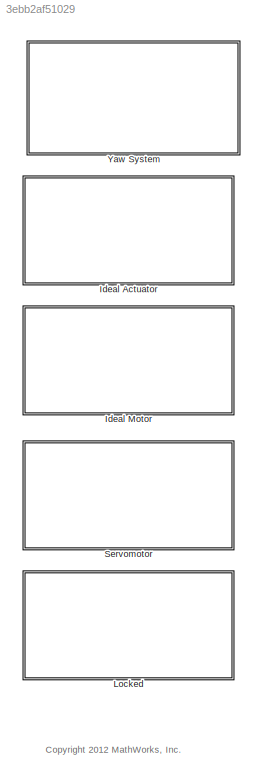
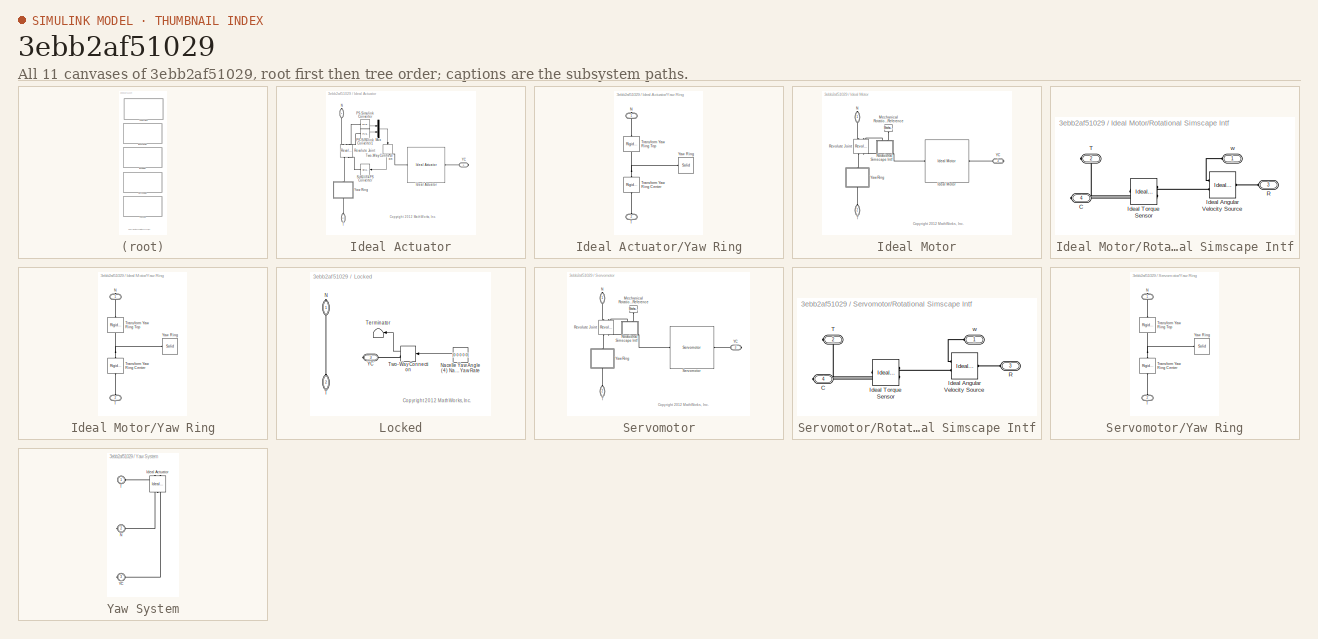
[diagram: thumbnail index - all 11 canvases of the model, root first then tree order]
MODEL slx_3ebb2af51029
KIND library
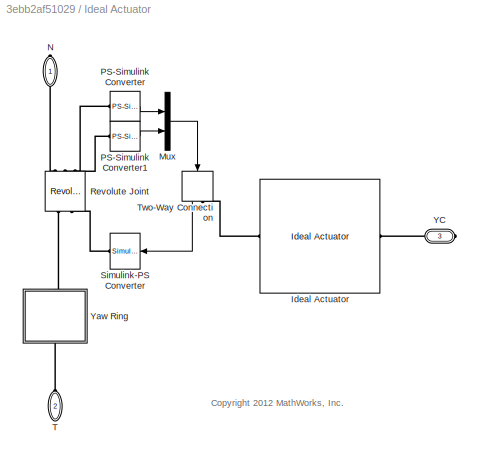
BLOCK [SubSystem] Ideal Actuator
  FunctionWithSeparateData = off
  MaskHideContents = off
  MinAlgLoopOccurrences = off
  Opaque = off
  Ports = [0, 0, 0, 0, 0, 1, 2]
  PropExecContextOutsideSubsystem = off
  RTWSystemCode = Auto
  RequestExecContextInheritance = off
BLOCK [Reference] Ideal Actuator/Ideal Actuator  REF=Yaw_Actuation_Lib/Ideal Actuator
  FunctionWithSeparateData = off
  GeneratePreprocessorConditionals = off
  Ports = [0, 0, 0, 0, 0, 1, 1]
  ShowPortLabels = FromPortIcon
  SourceBlock = Yaw_Actuation_Lib/Ideal Actuator
  SystemSampleTime = -1
BLOCK [Mux] Ideal Actuator/Mux
  DisplayOption = bar
  Inputs = 2
  Ports = [2, 1]
BLOCK [PMIOPort] Ideal Actuator/N
  Port = 1
  Side = Right
BLOCK [Reference] Ideal Actuator/PS-Simulink Converter  REF=nesl_utility/PS-Simulink
Converter
  AffineConversion = off
  Frequencies = []
  LeftPortType = input
  PhysicalDomain = network_engine_domain
  Ports = [0, 1, 0, 0, 0, 1]
  PseudoPeriodic = off
  RightPortType = output
  SourceBlock = nesl_utility/PS-Simulink\nConverter
  SourceType = PS-Simulink\nConverter
  SubClassName = ps_output
  Unit = deg
BLOCK [Reference] Ideal Actuator/PS-Simulink Converter1  REF=nesl_utility/PS-Simulink
Converter
  AffineConversion = off
  Frequencies = []
  LeftPortType = input
  PhysicalDomain = network_engine_domain
  Ports = [0, 1, 0, 0, 0, 1]
  PseudoPeriodic = off
  RightPortType = output
  SourceBlock = nesl_utility/PS-Simulink\nConverter
  SourceType = PS-Simulink\nConverter
  SubClassName = ps_output
  Unit = deg/s
BLOCK [Reference] Ideal Actuator/Revolute Joint  REF=sm_lib/Joints/Revolute Joint
  ActuationMode = TorqueForceActuation
  BlockFunction = simmechanics.library.joints.revolute_joint
  ClassName = RevoluteJoint
  ConstraintWrenchDir = FollowerOnBase
  ConstraintWrenchFrame = BaseFrame
  DampingCoefficient = WT_Params.Nacelle.damping
  DampingCoefficientUnits = N*m/(deg/s)
  EquilibriumPosition = 0
  EquilibriumPositionUnits = deg
  Ports = [0, 0, 0, 0, 0, 2, 3]
  PositionTargetPriority = High
  PositionTargetSpecify = off
  PositionTargetValue = 0
  PositionTargetValueUnits = deg
  SenseAcceleration = off
  SenseConstraintForceX = off
  SenseConstraintForceY = off
  SenseConstraintForceZ = off
  SenseConstraintTorqueX = off
  SenseConstraintTorqueY = off
  SenseConstraintTorqueZ = off
  SensePosition = on
  SenseTorqueForce = off
  SenseVelocity = on
  SourceBlock = sm_lib/Joints/Revolute Joint
  SourceType = Revolute Joint
  SpringStiffness = 0
  SpringStiffnessUnits = N*m/deg
  VelocityTargetPriority = High
  VelocityTargetSpecify = off
  VelocityTargetValue = 0
  VelocityTargetValueUnits = deg/s
BLOCK [Reference] Ideal Actuator/Simulink-PS Converter  REF=nesl_utility/Simulink-PS
Converter
  AffineConversion = off
  Frequencies = []
  InputFilterTimeConstant = .001
  InputFiltering = off
  LeftPortType = input
  NoiseDistribution = none
  NoiseParameters = []
  PhysicalDomain = network_engine_domain
  Ports = [1, 0, 0, 0, 0, 0, 1]
  PseudoPeriodic = off
  RightPortType = output
  SimscapeFilterOrder = 1
  SourceBlock = nesl_utility/Simulink-PS\nConverter
  SourceType = Simulink-PS\nConverter
  SubClassName = ps_input
  UdotUserProvided = []
  Unit = 1
BLOCK [PMIOPort] Ideal Actuator/T
  Port = 2
  Side = Left
BLOCK [TwoWayConnection] Ideal Actuator/Two-Way Connection
  Ports = [1, 1, 0, 0, 0, 0, 1]
BLOCK [PMIOPort] Ideal Actuator/YC
  Port = 3
  Side = Right
BLOCK [SubSystem] Ideal Actuator/Yaw Ring
  FunctionWithSeparateData = off
  MaskHideContents = off
  MinAlgLoopOccurrences = off
  Opaque = off
  Ports = [0, 0, 0, 0, 0, 1, 1]
  PropExecContextOutsideSubsystem = off
  RTWSystemCode = Auto
  RequestExecContextInheritance = off
BLOCK [PMIOPort] Ideal Actuator/Yaw Ring/N
  Port = 1
  Side = Right
BLOCK [PMIOPort] Ideal Actuator/Yaw Ring/T
  Port = 2
  Side = Left
BLOCK [Reference] Ideal Actuator/Yaw Ring/Transform Yaw Ring Center  REF=sm_lib/Frames and
 Transforms/Rigid 
Transform
  BaseAlignAxisA = +Y
  BaseAlignAxisB = +Z
  BlockFunction = simmechanics.library.frames_transforms.rigid_transform
  ClassName = RigidTransform
  FollAlignAxisA = +X
  FollAlignAxisB = +Y
  Ports = [0, 0, 0, 0, 0, 1, 1]
  RotationAngle = 0
  RotationAngleUnits = deg
  RotationArbitraryAxis = [0 0 1]
  RotationMethod = None
  RotationStandardAxis = +Z
  SourceBlock = sm_lib/Frames and\n Transforms/Rigid \nTransform
  SourceType = Rigid Transform
  TranslationCartesianOffset = [0 0 0]
  TranslationLengthUnit = m
  TranslationMethod = StandardAxis
  TranslationROffset = 0
  TranslationROffsetUnits = m
  TranslationStandardAxis = +Z
  TranslationStandardOffset = WT_Params.Yaw_Actuator.yaw_ring_thickness/2
  TranslationThetaOffset = 0
  TranslationThetaOffsetUnits = deg
  TranslationZOffset = 0
  TranslationZOffsetUnits = m
BLOCK [Reference] Ideal Actuator/Yaw Ring/Transform Yaw Ring Top  REF=sm_lib/Frames and
 Transforms/Rigid 
Transform
  BaseAlignAxisA = +Y
  BaseAlignAxisB = +Z
  BlockFunction = simmechanics.library.frames_transforms.rigid_transform
  ClassName = RigidTransform
  FollAlignAxisA = +X
  FollAlignAxisB = +Y
  Ports = [0, 0, 0, 0, 0, 1, 1]
  RotationAngle = 0
  RotationAngleUnits = deg
  RotationArbitraryAxis = [0 0 1]
  RotationMethod = None
  RotationStandardAxis = +Z
  SourceBlock = sm_lib/Frames and\n Transforms/Rigid \nTransform
  SourceType = Rigid Transform
  TranslationCartesianOffset = [0 0 0]
  TranslationLengthUnit = m
  TranslationMethod = StandardAxis
  TranslationROffset = 0
  TranslationROffsetUnits = m
  TranslationStandardAxis = +Z
  TranslationStandardOffset = WT_Params.Yaw_Actuator.yaw_ring_thickness/2
  TranslationThetaOffset = 0
  TranslationThetaOffsetUnits = deg
  TranslationZOffset = 0
  TranslationZOffsetUnits = m
BLOCK [Reference] Ideal Actuator/Yaw Ring/Yaw Ring  REF=sm_lib/Body Elements/Solid
  BlockFunction = simmechanics.library.body_elements.solid
  BrickDimensionUnits = m
  BrickDimensions = [1 1 1]
  CenterOfMass = [0 0 0]
  CenterOfMassUnits = m
  ClassName = Solid
  CylinderLength = WT_Params.Yaw_Actuator.yaw_ring_thickness
  CylinderLengthUnits = m
  CylinderRadius = WT_Params.Yaw_Actuator.yaw_ring_diameter/2
  CylinderRadiusUnits = m
  Density = 1000
  DensityBased = on
  DensityUnits = kg/(m^3)
  EllipsoidRadii = [1 1 1]
  EllipsoidRadiiUnits = m
  ExtGeomFileUnits = m
  ExtrusionCrossSection = [1 1; -1 1; -1 -1; 1 -1]
  ExtrusionCrossSectionUnits = m
  ExtrusionLength = 1
  ExtrusionLengthUnits = m
  GeometryShape = Cylinder
  GraphicAmbientColor = [0.15 0.15 0.15 1.0]
  GraphicDiffuseColor = [1.0 1.0 0.0]
  GraphicEmissiveColor = [0.0 0.0 0.0 1.0]
  GraphicOpacity = 1.0
  GraphicShininess = 75
  GraphicSpecularColor = [0.5 0.5 0.5 1.0]
  GraphicType = FromGeometry
  GraphicVisPropType = SimpleVisualProperties
  InertiaType = CalculateFromGeometry
  MarkerShape = Sphere
  MarkerSize = 10
  MarkerSizeUnits = m
  Mass = 1
  MassUnits = kg
  MomentsOfInertia = [1 1 1]
  MomentsOfInertiaUnits = kg*m^2
  PolygonNumSides = 3
  PolygonOuterRadius = 1
  PolygonOuterRadiusUnits = m
  Ports = [0, 0, 0, 0, 0, 0, 1]
  ProductsOfInertia = [0 0 0]
  ProductsOfInertiaUnits = kg*m^2
  RectangleSize = [1 1]
  RectangleSizeUnits = m
  RevolutionAngle = 180
  RevolutionAngleUnits = deg
  RevolutionCrossSection = [1 1; 1 -1; 2 -1; 2 1]
  RevolutionCrossSectionUnits = m
  RevolutionExtent = Full
  SourceBlock = sm_lib/Body Elements/Solid
  SourceType = Unknown
  SphereRadius = 1
  SphereRadiusUnits = m
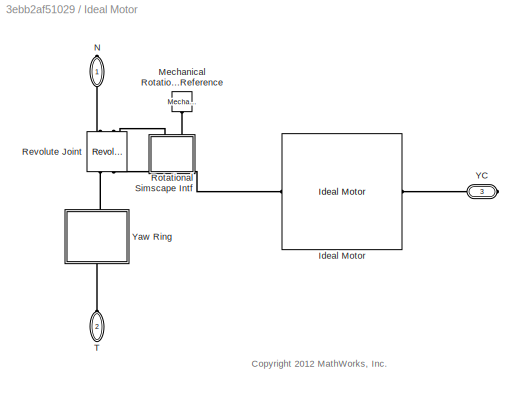
BLOCK [SubSystem] Ideal Motor
  FunctionWithSeparateData = off
  MaskHideContents = off
  MinAlgLoopOccurrences = off
  Opaque = off
  Ports = [0, 0, 0, 0, 0, 1, 2]
  PropExecContextOutsideSubsystem = off
  RTWSystemCode = Auto
  RequestExecContextInheritance = off
BLOCK [Reference] Ideal Motor/Ideal Motor  REF=Yaw_Actuation_Lib/Ideal Motor
  FunctionWithSeparateData = off
  GeneratePreprocessorConditionals = off
  Ports = [0, 0, 0, 0, 0, 1, 1]
  ShowPortLabels = FromPortIcon
  SourceBlock = Yaw_Actuation_Lib/Ideal Motor
  SystemSampleTime = -1
BLOCK [Reference] Ideal Motor/Mechanical Rotational Reference  REF=fl_lib/Mechanical/Rotational Elements/Mechanical
Rotational Reference
  ClassName = reference
  ComponentPath = foundation.mechanical.rotational.reference
  ComponentVariantNames = reference
  ComponentVariants = foundation.mechanical.rotational.reference
  LocalVarDescs = |t
  LocalVarLogging = 0
  LocalVarNames = |t
  Ports = [0, 0, 0, 0, 0, 1]
  SchemaVersion = 1
  SourceBlock = fl_lib/Mechanical/Rotational Elements/Mechanical\nRotational Reference
  SourceFile = foundation.mechanical.rotational.reference
  SourceType = Mechanical\nRotational Reference
  t_Log = off
BLOCK [PMIOPort] Ideal Motor/N
  Port = 1
  Side = Right
BLOCK [Reference] Ideal Motor/Revolute Joint  REF=sm_lib/Joints/Revolute Joint
  ActuationMode = TorqueForceActuation
  BlockFunction = simmechanics.library.joints.revolute_joint
  ClassName = RevoluteJoint
  ConstraintWrenchDir = FollowerOnBase
  ConstraintWrenchFrame = BaseFrame
  DampingCoefficient = WT_Params.Nacelle.damping
  DampingCoefficientUnits = N*m/(deg/s)
  EquilibriumPosition = 0
  EquilibriumPositionUnits = deg
  Ports = [0, 0, 0, 0, 0, 2, 2]
  PositionTargetPriority = High
  PositionTargetSpecify = off
  PositionTargetValue = 0
  PositionTargetValueUnits = deg
  SenseAcceleration = off
  SenseConstraintForceX = off
  SenseConstraintForceY = off
  SenseConstraintForceZ = off
  SenseConstraintTorqueX = off
  SenseConstraintTorqueY = off
  SenseConstraintTorqueZ = off
  SensePosition = off
  SenseTorqueForce = off
  SenseVelocity = on
  SourceBlock = sm_lib/Joints/Revolute Joint
  SourceType = Revolute Joint
  SpringStiffness = 0
  SpringStiffnessUnits = N*m/deg
  VelocityTargetPriority = High
  VelocityTargetSpecify = off
  VelocityTargetValue = 0
  VelocityTargetValueUnits = deg/s
BLOCK [SubSystem] Ideal Motor/Rotational Simscape Intf
  FunctionWithSeparateData = off
  MaskHideContents = off
  MinAlgLoopOccurrences = off
  Opaque = off
  Ports = [0, 0, 0, 0, 0, 2, 2]
  PropExecContextOutsideSubsystem = off
  RTWSystemCode = Auto
  RequestExecContextInheritance = off
BLOCK [PMIOPort] Ideal Motor/Rotational Simscape Intf/C
  Port = 4
  Side = Right
BLOCK [Reference] Ideal Motor/Rotational Simscape Intf/Ideal Angular Velocity Source  REF=fl_lib/Mechanical/Mechanical Sources/Ideal Angular
Velocity Source
  ClassName = angular_velocity
  ComponentPath = foundation.mechanical.sources.angular_velocity
  ComponentVariantNames = angular_velocity
  ComponentVariants = foundation.mechanical.sources.angular_velocity
  LocalVarDescs = |w|t
  LocalVarLogging = [0 0]
  LocalVarNames = |w|t
  Ports = [0, 0, 0, 0, 0, 1, 2]
  SchemaVersion = 1
  SourceBlock = fl_lib/Mechanical/Mechanical Sources/Ideal Angular\nVelocity Source
  SourceFile = foundation.mechanical.sources.angular_velocity
  SourceType = Ideal Angular\nVelocity Source
  t_Log = off
  w_Log = off
BLOCK [Reference] Ideal Motor/Rotational Simscape Intf/Ideal Torque Sensor  REF=fl_lib/Mechanical/Mechanical Sensors/Ideal Torque Sensor
  ClassName = torque
  ComponentPath = foundation.mechanical.sensors.torque
  ComponentVariantNames = torque
  ComponentVariants = foundation.mechanical.sensors.torque
  LocalVarDescs = |w|t
  LocalVarLogging = [0 0]
  LocalVarNames = |w|t
  Ports = [0, 0, 0, 0, 0, 1, 2]
  SchemaVersion = 1
  SourceBlock = fl_lib/Mechanical/Mechanical Sensors/Ideal Torque Sensor
  SourceFile = foundation.mechanical.sensors.torque
  SourceType = Ideal Torque Sensor
  t_Log = off
  w_Log = off
BLOCK [PMIOPort] Ideal Motor/Rotational Simscape Intf/R
  Port = 3
  Side = Left
BLOCK [PMIOPort] Ideal Motor/Rotational Simscape Intf/T
  Port = 2
  Side = Right
BLOCK [PMIOPort] Ideal Motor/Rotational Simscape Intf/w
  Port = 1
  Side = Left
BLOCK [PMIOPort] Ideal Motor/T
  Port = 2
  Side = Left
BLOCK [PMIOPort] Ideal Motor/YC
  Port = 3
  Side = Right
BLOCK [SubSystem] Ideal Motor/Yaw Ring
  FunctionWithSeparateData = off
  MaskHideContents = off
  MinAlgLoopOccurrences = off
  Opaque = off
  Ports = [0, 0, 0, 0, 0, 1, 1]
  PropExecContextOutsideSubsystem = off
  RTWSystemCode = Auto
  RequestExecContextInheritance = off
BLOCK [PMIOPort] Ideal Motor/Yaw Ring/N
  Port = 1
  Side = Right
BLOCK [PMIOPort] Ideal Motor/Yaw Ring/T
  Port = 2
  Side = Left
BLOCK [Reference] Ideal Motor/Yaw Ring/Transform Yaw Ring Center  REF=sm_lib/Frames and
 Transforms/Rigid 
Transform
  BaseAlignAxisA = +Y
  BaseAlignAxisB = +Z
  BlockFunction = simmechanics.library.frames_transforms.rigid_transform
  ClassName = RigidTransform
  FollAlignAxisA = +X
  FollAlignAxisB = +Y
  Ports = [0, 0, 0, 0, 0, 1, 1]
  RotationAngle = 0
  RotationAngleUnits = deg
  RotationArbitraryAxis = [0 0 1]
  RotationMethod = None
  RotationStandardAxis = +Z
  SourceBlock = sm_lib/Frames and\n Transforms/Rigid \nTransform
  SourceType = Rigid Transform
  TranslationCartesianOffset = [0 0 0]
  TranslationLengthUnit = m
  TranslationMethod = StandardAxis
  TranslationROffset = 0
  TranslationROffsetUnits = m
  TranslationStandardAxis = +Z
  TranslationStandardOffset = WT_Params.Yaw_Actuator.yaw_ring_thickness/2
  TranslationThetaOffset = 0
  TranslationThetaOffsetUnits = deg
  TranslationZOffset = 0
  TranslationZOffsetUnits = m
BLOCK [Reference] Ideal Motor/Yaw Ring/Transform Yaw Ring Top  REF=sm_lib/Frames and
 Transforms/Rigid 
Transform
  BaseAlignAxisA = +Y
  BaseAlignAxisB = +Z
  BlockFunction = simmechanics.library.frames_transforms.rigid_transform
  ClassName = RigidTransform
  FollAlignAxisA = +X
  FollAlignAxisB = +Y
  Ports = [0, 0, 0, 0, 0, 1, 1]
  RotationAngle = 0
  RotationAngleUnits = deg
  RotationArbitraryAxis = [0 0 1]
  RotationMethod = None
  RotationStandardAxis = +Z
  SourceBlock = sm_lib/Frames and\n Transforms/Rigid \nTransform
  SourceType = Rigid Transform
  TranslationCartesianOffset = [0 0 0]
  TranslationLengthUnit = m
  TranslationMethod = StandardAxis
  TranslationROffset = 0
  TranslationROffsetUnits = m
  TranslationStandardAxis = +Z
  TranslationStandardOffset = WT_Params.Yaw_Actuator.yaw_ring_thickness/2
  TranslationThetaOffset = 0
  TranslationThetaOffsetUnits = deg
  TranslationZOffset = 0
  TranslationZOffsetUnits = m
BLOCK [Reference] Ideal Motor/Yaw Ring/Yaw Ring  REF=sm_lib/Body Elements/Solid
  BlockFunction = simmechanics.library.body_elements.solid
  BrickDimensionUnits = m
  BrickDimensions = [1 1 1]
  CenterOfMass = [0 0 0]
  CenterOfMassUnits = m
  ClassName = Solid
  CylinderLength = WT_Params.Yaw_Actuator.yaw_ring_thickness
  CylinderLengthUnits = m
  CylinderRadius = WT_Params.Yaw_Actuator.yaw_ring_diameter/2
  CylinderRadiusUnits = m
  Density = 1000
  DensityBased = on
  DensityUnits = kg/(m^3)
  EllipsoidRadii = [1 1 1]
  EllipsoidRadiiUnits = m
  ExtGeomFileUnits = m
  ExtrusionCrossSection = [1 1; -1 1; -1 -1; 1 -1]
  ExtrusionCrossSectionUnits = m
  ExtrusionLength = 1
  ExtrusionLengthUnits = m
  GeometryShape = Cylinder
  GraphicAmbientColor = [0.15 0.15 0.15 1.0]
  GraphicDiffuseColor = [1.0 1.0 0.0]
  GraphicEmissiveColor = [0.0 0.0 0.0 1.0]
  GraphicOpacity = 1.0
  GraphicShininess = 75
  GraphicSpecularColor = [0.5 0.5 0.5 1.0]
  GraphicType = FromGeometry
  GraphicVisPropType = SimpleVisualProperties
  InertiaType = CalculateFromGeometry
  MarkerShape = Sphere
  MarkerSize = 10
  MarkerSizeUnits = m
  Mass = 1
  MassUnits = kg
  MomentsOfInertia = [1 1 1]
  MomentsOfInertiaUnits = kg*m^2
  PolygonNumSides = 3
  PolygonOuterRadius = 1
  PolygonOuterRadiusUnits = m
  Ports = [0, 0, 0, 0, 0, 0, 1]
  ProductsOfInertia = [0 0 0]
  ProductsOfInertiaUnits = kg*m^2
  RectangleSize = [1 1]
  RectangleSizeUnits = m
  RevolutionAngle = 180
  RevolutionAngleUnits = deg
  RevolutionCrossSection = [1 1; 1 -1; 2 -1; 2 1]
  RevolutionCrossSectionUnits = m
  RevolutionExtent = Full
  SourceBlock = sm_lib/Body Elements/Solid
  SourceType = Unknown
  SphereRadius = 1
  SphereRadiusUnits = m
BLOCK [SubSystem] Locked
  FunctionWithSeparateData = off
  MaskHideContents = off
  MinAlgLoopOccurrences = off
  Opaque = off
  Ports = [0, 0, 0, 0, 0, 1, 2]
  PropExecContextOutsideSubsystem = off
  RTWSystemCode = Auto
  RequestExecContextInheritance = off
BLOCK [PMIOPort] Locked/N
  Port = 1
  Side = Right
BLOCK [Constant] Locked/Nacelle Yaw Angle (4) Nacelle Yaw Rate
  Value = [0 0 0 0 0]
BLOCK [PMIOPort] Locked/T
  Port = 2
  Side = Left
BLOCK [Terminator] Locked/Terminator
BLOCK [TwoWayConnection] Locked/Two-Way Connection
  Ports = [1, 1, 0, 0, 0, 0, 1]
BLOCK [PMIOPort] Locked/YC
  Port = 3
  Side = Right
BLOCK [SubSystem] Servomotor
  FunctionWithSeparateData = off
  MaskHideContents = off
  MinAlgLoopOccurrences = off
  Opaque = off
  Ports = [0, 0, 0, 0, 0, 1, 2]
  PropExecContextOutsideSubsystem = off
  RTWSystemCode = Auto
  RequestExecContextInheritance = off
BLOCK [Reference] Servomotor/Mechanical Rotational Reference  REF=fl_lib/Mechanical/Rotational Elements/Mechanical
Rotational Reference
  ClassName = reference
  ComponentPath = foundation.mechanical.rotational.reference
  ComponentVariantNames = reference
  ComponentVariants = foundation.mechanical.rotational.reference
  LocalVarDescs = |t
  LocalVarLogging = 0
  LocalVarNames = |t
  Ports = [0, 0, 0, 0, 0, 1]
  SchemaVersion = 1
  SourceBlock = fl_lib/Mechanical/Rotational Elements/Mechanical\nRotational Reference
  SourceFile = foundation.mechanical.rotational.reference
  SourceType = Mechanical\nRotational Reference
  t_Log = off
BLOCK [PMIOPort] Servomotor/N
  Port = 1
  Side = Right
BLOCK [Reference] Servomotor/Revolute Joint  REF=sm_lib/Joints/Revolute Joint
  ActuationMode = TorqueForceActuation
  BlockFunction = simmechanics.library.joints.revolute_joint
  ClassName = RevoluteJoint
  ConstraintWrenchDir = FollowerOnBase
  ConstraintWrenchFrame = BaseFrame
  DampingCoefficient = WT_Params.Nacelle.damping
  DampingCoefficientUnits = N*m/(deg/s)
  EquilibriumPosition = 0
  EquilibriumPositionUnits = deg
  Ports = [0, 0, 0, 0, 0, 2, 2]
  PositionTargetPriority = High
  PositionTargetSpecify = off
  PositionTargetValue = 0
  PositionTargetValueUnits = deg
  SenseAcceleration = off
  SenseConstraintForceX = off
  SenseConstraintForceY = off
  SenseConstraintForceZ = off
  SenseConstraintTorqueX = off
  SenseConstraintTorqueY = off
  SenseConstraintTorqueZ = off
  SensePosition = off
  SenseTorqueForce = off
  SenseVelocity = on
  SourceBlock = sm_lib/Joints/Revolute Joint
  SourceType = Revolute Joint
  SpringStiffness = 0
  SpringStiffnessUnits = N*m/deg
  VelocityTargetPriority = High
  VelocityTargetSpecify = off
  VelocityTargetValue = 0
  VelocityTargetValueUnits = deg/s
BLOCK [SubSystem] Servomotor/Rotational Simscape Intf
  FunctionWithSeparateData = off
  MaskHideContents = off
  MinAlgLoopOccurrences = off
  Opaque = off
  Ports = [0, 0, 0, 0, 0, 2, 2]
  PropExecContextOutsideSubsystem = off
  RTWSystemCode = Auto
  RequestExecContextInheritance = off
BLOCK [PMIOPort] Servomotor/Rotational Simscape Intf/C
  Port = 4
  Side = Right
BLOCK [Reference] Servomotor/Rotational Simscape Intf/Ideal Angular Velocity Source  REF=fl_lib/Mechanical/Mechanical Sources/Ideal Angular
Velocity Source
  ClassName = angular_velocity
  ComponentPath = foundation.mechanical.sources.angular_velocity
  ComponentVariantNames = angular_velocity
  ComponentVariants = foundation.mechanical.sources.angular_velocity
  LocalVarDescs = |w|t
  LocalVarLogging = [0 0]
  LocalVarNames = |w|t
  Ports = [0, 0, 0, 0, 0, 1, 2]
  SchemaVersion = 1
  SourceBlock = fl_lib/Mechanical/Mechanical Sources/Ideal Angular\nVelocity Source
  SourceFile = foundation.mechanical.sources.angular_velocity
  SourceType = Ideal Angular\nVelocity Source
  t_Log = off
  w_Log = off
BLOCK [Reference] Servomotor/Rotational Simscape Intf/Ideal Torque Sensor  REF=fl_lib/Mechanical/Mechanical Sensors/Ideal Torque Sensor
  ClassName = torque
  ComponentPath = foundation.mechanical.sensors.torque
  ComponentVariantNames = torque
  ComponentVariants = foundation.mechanical.sensors.torque
  LocalVarDescs = |w|t
  LocalVarLogging = [0 0]
  LocalVarNames = |w|t
  Ports = [0, 0, 0, 0, 0, 1, 2]
  SchemaVersion = 1
  SourceBlock = fl_lib/Mechanical/Mechanical Sensors/Ideal Torque Sensor
  SourceFile = foundation.mechanical.sensors.torque
  SourceType = Ideal Torque Sensor
  t_Log = off
  w_Log = off
BLOCK [PMIOPort] Servomotor/Rotational Simscape Intf/R
  Port = 3
  Side = Left
BLOCK [PMIOPort] Servomotor/Rotational Simscape Intf/T
  Port = 2
  Side = Right
BLOCK [PMIOPort] Servomotor/Rotational Simscape Intf/w
  Port = 1
  Side = Left
BLOCK [Reference] Servomotor/Servomotor  REF=Yaw_Actuation_Lib/Servomotor
  FunctionWithSeparateData = off
  GeneratePreprocessorConditionals = off
  Ports = [0, 0, 0, 0, 0, 1, 1]
  ShowPortLabels = FromPortIcon
  SourceBlock = Yaw_Actuation_Lib/Servomotor
  SystemSampleTime = -1
BLOCK [PMIOPort] Servomotor/T
  Port = 2
  Side = Left
BLOCK [PMIOPort] Servomotor/YC
  Port = 3
  Side = Right
BLOCK [SubSystem] Servomotor/Yaw Ring
  FunctionWithSeparateData = off
  MaskHideContents = off
  MinAlgLoopOccurrences = off
  Opaque = off
  Ports = [0, 0, 0, 0, 0, 1, 1]
  PropExecContextOutsideSubsystem = off
  RTWSystemCode = Auto
  RequestExecContextInheritance = off
BLOCK [PMIOPort] Servomotor/Yaw Ring/N
  Port = 1
  Side = Right
BLOCK [PMIOPort] Servomotor/Yaw Ring/T
  Port = 2
  Side = Left
BLOCK [Reference] Servomotor/Yaw Ring/Transform Yaw Ring Center  REF=sm_lib/Frames and
 Transforms/Rigid 
Transform
  BaseAlignAxisA = +Y
  BaseAlignAxisB = +Z
  BlockFunction = simmechanics.library.frames_transforms.rigid_transform
  ClassName = RigidTransform
  FollAlignAxisA = +X
  FollAlignAxisB = +Y
  Ports = [0, 0, 0, 0, 0, 1, 1]
  RotationAngle = 0
  RotationAngleUnits = deg
  RotationArbitraryAxis = [0 0 1]
  RotationMethod = None
  RotationStandardAxis = +Z
  SourceBlock = sm_lib/Frames and\n Transforms/Rigid \nTransform
  SourceType = Rigid Transform
  TranslationCartesianOffset = [0 0 0]
  TranslationLengthUnit = m
  TranslationMethod = StandardAxis
  TranslationROffset = 0
  TranslationROffsetUnits = m
  TranslationStandardAxis = +Z
  TranslationStandardOffset = WT_Params.Yaw_Actuator.yaw_ring_thickness/2
  TranslationThetaOffset = 0
  TranslationThetaOffsetUnits = deg
  TranslationZOffset = 0
  TranslationZOffsetUnits = m
BLOCK [Reference] Servomotor/Yaw Ring/Transform Yaw Ring Top  REF=sm_lib/Frames and
 Transforms/Rigid 
Transform
  BaseAlignAxisA = +Y
  BaseAlignAxisB = +Z
  BlockFunction = simmechanics.library.frames_transforms.rigid_transform
  ClassName = RigidTransform
  FollAlignAxisA = +X
  FollAlignAxisB = +Y
  Ports = [0, 0, 0, 0, 0, 1, 1]
  RotationAngle = 0
  RotationAngleUnits = deg
  RotationArbitraryAxis = [0 0 1]
  RotationMethod = None
  RotationStandardAxis = +Z
  SourceBlock = sm_lib/Frames and\n Transforms/Rigid \nTransform
  SourceType = Rigid Transform
  TranslationCartesianOffset = [0 0 0]
  TranslationLengthUnit = m
  TranslationMethod = StandardAxis
  TranslationROffset = 0
  TranslationROffsetUnits = m
  TranslationStandardAxis = +Z
  TranslationStandardOffset = WT_Params.Yaw_Actuator.yaw_ring_thickness/2
  TranslationThetaOffset = 0
  TranslationThetaOffsetUnits = deg
  TranslationZOffset = 0
  TranslationZOffsetUnits = m
BLOCK [Reference] Servomotor/Yaw Ring/Yaw Ring  REF=sm_lib/Body Elements/Solid
  BlockFunction = simmechanics.library.body_elements.solid
  BrickDimensionUnits = m
  BrickDimensions = [1 1 1]
  CenterOfMass = [0 0 0]
  CenterOfMassUnits = m
  ClassName = Solid
  CylinderLength = WT_Params.Yaw_Actuator.yaw_ring_thickness
  CylinderLengthUnits = m
  CylinderRadius = WT_Params.Yaw_Actuator.yaw_ring_diameter/2
  CylinderRadiusUnits = m
  Density = 1000
  DensityBased = on
  DensityUnits = kg/(m^3)
  EllipsoidRadii = [1 1 1]
  EllipsoidRadiiUnits = m
  ExtGeomFileUnits = m
  ExtrusionCrossSection = [1 1; -1 1; -1 -1; 1 -1]
  ExtrusionCrossSectionUnits = m
  ExtrusionLength = 1
  ExtrusionLengthUnits = m
  GeometryShape = Cylinder
  GraphicAmbientColor = [0.15 0.15 0.15 1.0]
  GraphicDiffuseColor = [1.0 1.0 0.0]
  GraphicEmissiveColor = [0.0 0.0 0.0 1.0]
  GraphicOpacity = 1.0
  GraphicShininess = 75
  GraphicSpecularColor = [0.5 0.5 0.5 1.0]
  GraphicType = FromGeometry
  GraphicVisPropType = SimpleVisualProperties
  InertiaType = CalculateFromGeometry
  MarkerShape = Sphere
  MarkerSize = 10
  MarkerSizeUnits = m
  Mass = 1
  MassUnits = kg
  MomentsOfInertia = [1 1 1]
  MomentsOfInertiaUnits = kg*m^2
  PolygonNumSides = 3
  PolygonOuterRadius = 1
  PolygonOuterRadiusUnits = m
  Ports = [0, 0, 0, 0, 0, 0, 1]
  ProductsOfInertia = [0 0 0]
  ProductsOfInertiaUnits = kg*m^2
  RectangleSize = [1 1]
  RectangleSizeUnits = m
  RevolutionAngle = 180
  RevolutionAngleUnits = deg
  RevolutionCrossSection = [1 1; 1 -1; 2 -1; 2 1]
  RevolutionCrossSectionUnits = m
  RevolutionExtent = Full
  SourceBlock = sm_lib/Body Elements/Solid
  SourceType = Unknown
  SphereRadius = 1
  SphereRadiusUnits = m
BLOCK [SubSystem] Yaw System
  BlockChoice = Ideal Actuator
  FunctionWithSeparateData = off
  MaskHideContents = off
  MemberBlocks = Ideal Actuator,Ideal Motor,Locked,Servomotor
  MinAlgLoopOccurrences = off
  Opaque = off
  Ports = [0, 0, 0, 0, 0, 1, 2]
  PropExecContextOutsideSubsystem = off
  RTWSystemCode = Auto
  RequestExecContextInheritance = off
  TemplateBlock = self
BLOCK [Reference] Yaw System/Ideal Actuator  REF=Yaw_System_Lib/Ideal Actuator
  FunctionWithSeparateData = off
  GeneratePreprocessorConditionals = off
  Ports = [0, 0, 0, 0, 0, 1, 2]
  ShowPortLabels = FromPortIcon
  SourceBlock = Yaw_System_Lib/Ideal Actuator
  SystemSampleTime = -1
BLOCK [PMIOPort] Yaw System/N
  Port = 2
  Side = Right
BLOCK [PMIOPort] Yaw System/T
  Port = 1
  Side = Left
BLOCK [PMIOPort] Yaw System/YC
  Port = 3
  Side = Right
ANNOTATION (root): <copyright redacted>
ANNOTATION Ideal Actuator: <copyright redacted>
ANNOTATION Ideal Motor: <copyright redacted>
ANNOTATION Locked: <copyright redacted>
ANNOTATION Servomotor: <copyright redacted>
LINE Ideal Actuator/Mux:1 -> Ideal Actuator/Two-Way Connection:1
LINE Ideal Actuator/PS-Simulink Converter1:1 -> Ideal Actuator/Mux:2
LINE Ideal Actuator/PS-Simulink Converter:1 -> Ideal Actuator/Mux:1
LINE Ideal Actuator/Two-Way Connection:1 -> Ideal Actuator/Simulink-PS Converter:1
LINE Locked/Nacelle Yaw Angle (4) Nacelle Yaw Rate:1 -> Locked/Two-Way Connection:1
LINE Locked/Two-Way Connection:1 -> Locked/Terminator:1
PLINE Ideal Actuator/Ideal Actuator:LConn1 -- Ideal Actuator/Two-Way Connection:RConn1
PLINE Ideal Actuator/Ideal Actuator:RConn1 -- Ideal Actuator/YC:RConn1
PLINE Ideal Actuator/N:RConn1 -- Ideal Actuator/Revolute Joint:RConn1
PLINE Ideal Actuator/PS-Simulink Converter1:LConn1 -- Ideal Actuator/Revolute Joint:RConn3
PLINE Ideal Actuator/PS-Simulink Converter:LConn1 -- Ideal Actuator/Revolute Joint:RConn2
PLINE Ideal Actuator/Revolute Joint:LConn1 -- Ideal Actuator/Yaw Ring:RConn1
PLINE Ideal Actuator/Revolute Joint:LConn2 -- Ideal Actuator/Simulink-PS Converter:RConn1
PLINE Ideal Actuator/T:RConn1 -- Ideal Actuator/Yaw Ring:LConn1
PLINE Ideal Actuator/Yaw Ring/N:RConn1 -- Ideal Actuator/Yaw Ring/Transform Yaw Ring Top:RConn1
PLINE Ideal Actuator/Yaw Ring/T:RConn1 -- Ideal Actuator/Yaw Ring/Transform Yaw Ring Center:LConn1
PNET net1: Ideal Actuator/Yaw Ring/Transform Yaw Ring Center:RConn1 -- Ideal Actuator/Yaw Ring/Transform Yaw Ring Top:LConn1 -- Ideal Actuator/Yaw Ring/Yaw Ring:RConn1
PLINE Ideal Motor/Ideal Motor:LConn1 -- Ideal Motor/Rotational Simscape Intf:RConn2
PLINE Ideal Motor/Ideal Motor:RConn1 -- Ideal Motor/YC:RConn1
PLINE Ideal Motor/Mechanical Rotational Reference:LConn1 -- Ideal Motor/Rotational Simscape Intf:LConn2
PLINE Ideal Motor/N:RConn1 -- Ideal Motor/Revolute Joint:RConn1
PLINE Ideal Motor/Revolute Joint:LConn1 -- Ideal Motor/Yaw Ring:RConn1
PLINE Ideal Motor/Revolute Joint:LConn2 -- Ideal Motor/Rotational Simscape Intf:RConn1
PLINE Ideal Motor/Revolute Joint:RConn2 -- Ideal Motor/Rotational Simscape Intf:LConn1
PLINE Ideal Motor/Rotational Simscape Intf/C:RConn1 -- Ideal Motor/Rotational Simscape Intf/Ideal Torque Sensor:RConn1
PLINE Ideal Motor/Rotational Simscape Intf/Ideal Angular Velocity Source:LConn1 -- Ideal Motor/Rotational Simscape Intf/R:RConn1
PLINE Ideal Motor/Rotational Simscape Intf/Ideal Angular Velocity Source:RConn1 -- Ideal Motor/Rotational Simscape Intf/w:RConn1
PLINE Ideal Motor/Rotational Simscape Intf/Ideal Angular Velocity Source:RConn2 -- Ideal Motor/Rotational Simscape Intf/Ideal Torque Sensor:LConn1
PLINE Ideal Motor/Rotational Simscape Intf/Ideal Torque Sensor:RConn2 -- Ideal Motor/Rotational Simscape Intf/T:RConn1
PLINE Ideal Motor/T:RConn1 -- Ideal Motor/Yaw Ring:LConn1
PLINE Ideal Motor/Yaw Ring/N:RConn1 -- Ideal Motor/Yaw Ring/Transform Yaw Ring Top:RConn1
PLINE Ideal Motor/Yaw Ring/T:RConn1 -- Ideal Motor/Yaw Ring/Transform Yaw Ring Center:LConn1
PNET net2: Ideal Motor/Yaw Ring/Transform Yaw Ring Center:RConn1 -- Ideal Motor/Yaw Ring/Transform Yaw Ring Top:LConn1 -- Ideal Motor/Yaw Ring/Yaw Ring:RConn1
PLINE Locked/N:RConn1 -- Locked/T:RConn1
PLINE Locked/Two-Way Connection:RConn1 -- Locked/YC:RConn1
PLINE Servomotor/Mechanical Rotational Reference:LConn1 -- Servomotor/Rotational Simscape Intf:LConn2
PLINE Servomotor/N:RConn1 -- Servomotor/Revolute Joint:RConn1
PLINE Servomotor/Revolute Joint:LConn1 -- Servomotor/Yaw Ring:RConn1
PLINE Servomotor/Revolute Joint:LConn2 -- Servomotor/Rotational Simscape Intf:RConn1
PLINE Servomotor/Revolute Joint:RConn2 -- Servomotor/Rotational Simscape Intf:LConn1
PLINE Servomotor/Rotational Simscape Intf/C:RConn1 -- Servomotor/Rotational Simscape Intf/Ideal Torque Sensor:RConn1
PLINE Servomotor/Rotational Simscape Intf/Ideal Angular Velocity Source:LConn1 -- Servomotor/Rotational Simscape Intf/R:RConn1
PLINE Servomotor/Rotational Simscape Intf/Ideal Angular Velocity Source:RConn1 -- Servomotor/Rotational Simscape Intf/w:RConn1
PLINE Servomotor/Rotational Simscape Intf/Ideal Angular Velocity Source:RConn2 -- Servomotor/Rotational Simscape Intf/Ideal Torque Sensor:LConn1
PLINE Servomotor/Rotational Simscape Intf/Ideal Torque Sensor:RConn2 -- Servomotor/Rotational Simscape Intf/T:RConn1
PLINE Servomotor/Rotational Simscape Intf:RConn2 -- Servomotor/Servomotor:LConn1
PLINE Servomotor/Servomotor:RConn1 -- Servomotor/YC:RConn1
PLINE Servomotor/T:RConn1 -- Servomotor/Yaw Ring:LConn1
PLINE Servomotor/Yaw Ring/N:RConn1 -- Servomotor/Yaw Ring/Transform Yaw Ring Top:RConn1
PLINE Servomotor/Yaw Ring/T:RConn1 -- Servomotor/Yaw Ring/Transform Yaw Ring Center:LConn1
PNET net3: Servomotor/Yaw Ring/Transform Yaw Ring Center:RConn1 -- Servomotor/Yaw Ring/Transform Yaw Ring Top:LConn1 -- Servomotor/Yaw Ring/Yaw Ring:RConn1
PLINE Yaw System/Ideal Actuator:LConn1 -- Yaw System/T:RConn1
PLINE Yaw System/Ideal Actuator:RConn1 -- Yaw System/N:RConn1
PLINE Yaw System/Ideal Actuator:RConn2 -- Yaw System/YC:RConn1
note: PNET lines group multi-terminal physical nets as a canonical sorted terminal list (undirected conserving connections); 2-terminal nets keep the pairwise PLINE form
